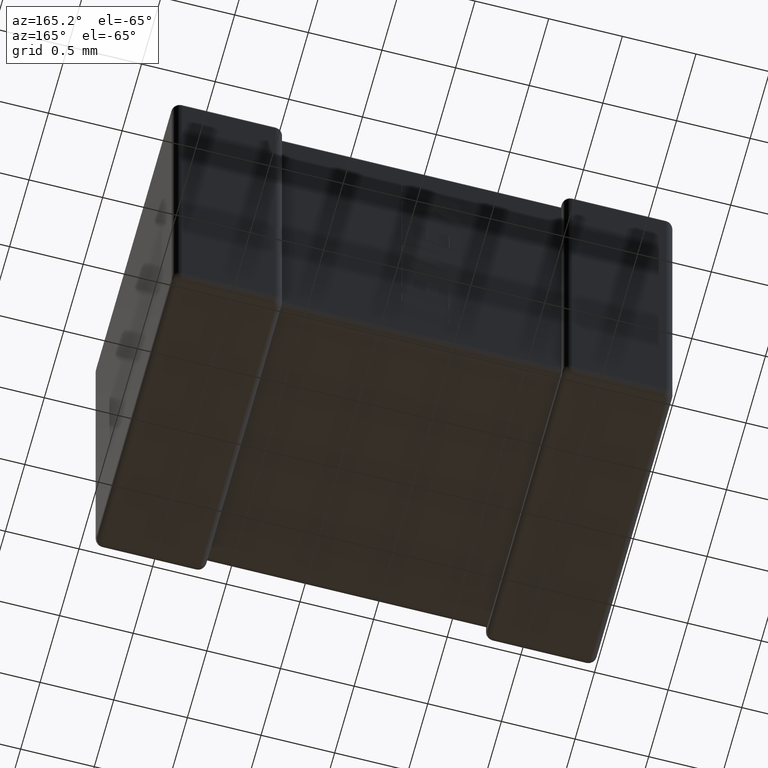
[diagram: clean part render]
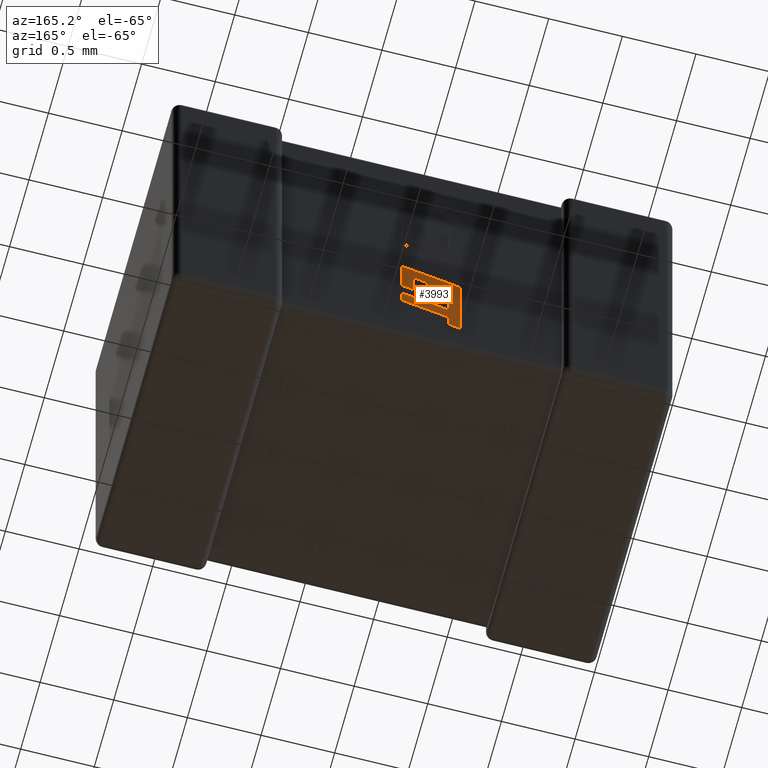
[diagram: same view with one face highlighted and labeled with its STEP entity id]
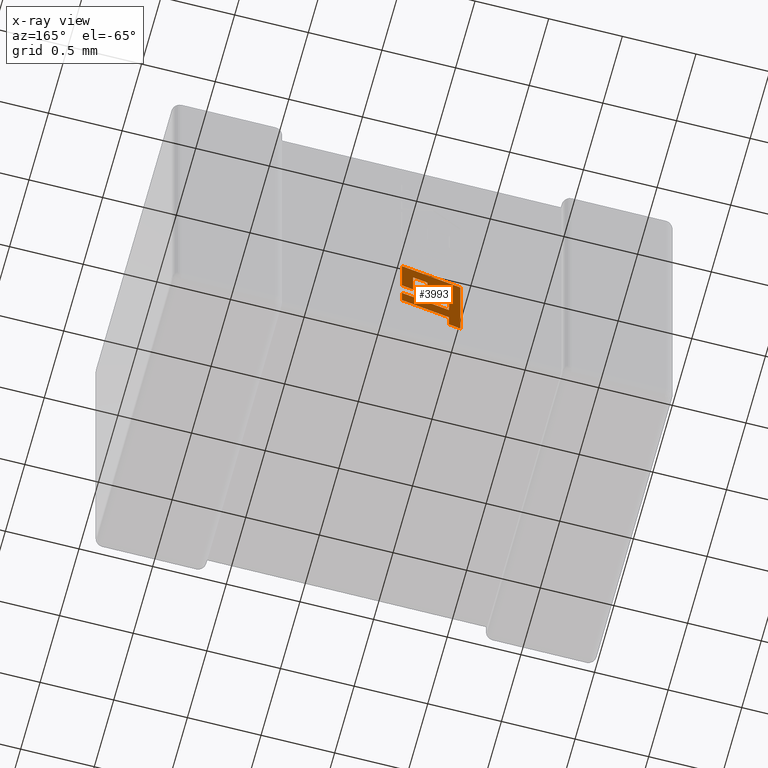
[diagram: x-ray of the same camera — body ghosted, the highlighted face saturated]
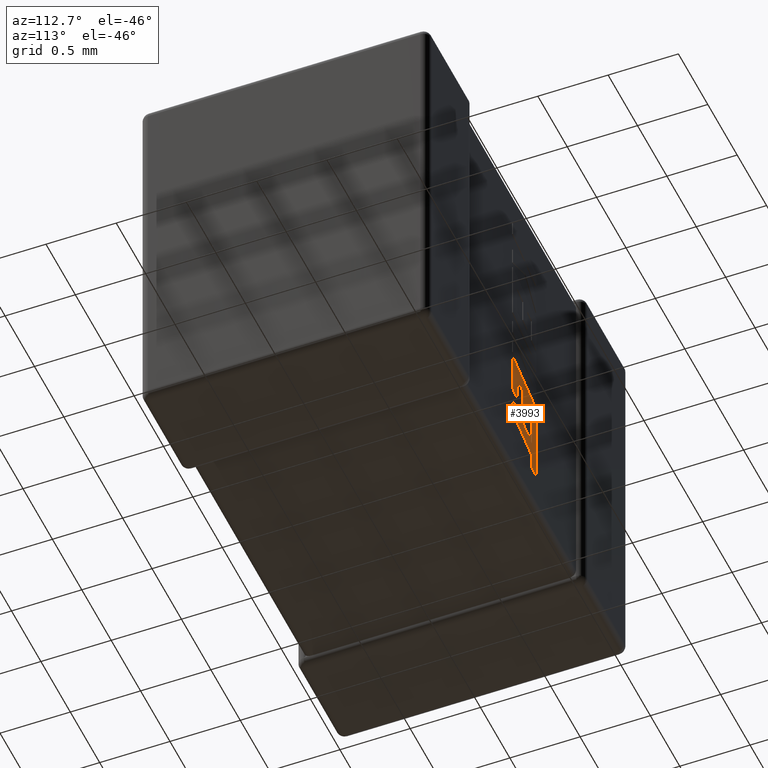
[diagram: same view with one face highlighted and labeled with its STEP entity id]
A machine part, auxiliary view. The second image highlights one B-rep face of the part: STEP entity #3993.
The next image is the same camera in x-ray: the body ghosted, the highlighted face saturated — about 0% of this face is hidden behind the body in this view.
A second angle (auxiliary view) of the same face is appended — the face is thin or edge-on in the first view.
In plain terms, the highlighted planar face has unit normal (0, 1, 0).
Its self-contained STEP definition (entity closure, byte-faithful):
#34 = CARTESIAN_POINT ( 'NONE',  ( 1.588465923456928497, 1.998839999999999950, -1.966827799437227853 ) ) ;
#143 = DIRECTION ( 'NONE',  ( -0.9610992334305258344, 0.000000000000000000, -0.2762033010288898471 ) ) ;
#148 = CARTESIAN_POINT ( 'NONE',  ( 1.515718616155726339, 1.998839999999999950, -2.342256360764721101 ) ) ;
#171 = DIRECTION ( 'NONE',  ( 7.938847109757213207E-05, 0.000000000000000000, -0.9999999968487351953 ) ) ;
#217 = EDGE_CURVE ( 'NONE', #3555, #1108, #258, .T. ) ;
#223 = DIRECTION ( 'NONE',  ( 0.002813301676014987301, 0.000000000000000000, -0.9999960426590095430 ) ) ;
#252 = CARTESIAN_POINT ( 'NONE',  ( 1.515709988556392718, 1.998839999999999950, -2.120536977100616838 ) ) ;
#258 = LINE ( 'NONE', #980, #3658 ) ;
#286 = VERTEX_POINT ( 'NONE', #356 ) ;
#317 = VECTOR ( 'NONE', #1958, 1000.000000000000000 ) ;
#341 = LINE ( 'NONE', #2171, #3748 ) ;
#347 = CARTESIAN_POINT ( 'NONE',  ( 1.588465923456928497, 1.998839999999999950, -1.796487452407086405 ) ) ;
#356 = CARTESIAN_POINT ( 'NONE',  ( 1.760469387423751142, 1.998839999999999950, -1.747392916304139288 ) ) ;
#411 = VECTOR ( 'NONE', #2578, 1000.000000000000227 ) ;
#435 = CARTESIAN_POINT ( 'NONE',  ( 1.760469387423751142, 1.998839999999999950, -1.747392916304139288 ) ) ;
#472 = LINE ( 'NONE', #4144, #1908 ) ;
#482 = DIRECTION ( 'NONE',  ( 0.000000000000000000, 0.000000000000000000, 1.000000000000000000 ) ) ;
#517 = EDGE_CURVE ( 'NONE', #2469, #1647, #3500, .T. ) ;
#522 = VERTEX_POINT ( 'NONE', #2718 ) ;
#524 = CARTESIAN_POINT ( 'NONE',  ( 1.661831346059415848, 1.998839999999999950, -1.945868663934890108 ) ) ;
#556 = VERTEX_POINT ( 'NONE', #34 ) ;
#575 = VECTOR ( 'NONE', #2186, 1000.000000000000227 ) ;
#601 = LINE ( 'NONE', #1332, #3647 ) ;
#644 = VECTOR ( 'NONE', #2866, 1000.000000000000114 ) ;
#705 = ORIENTED_EDGE ( 'NONE', *, *, #2981, .T. ) ;
#737 = EDGE_CURVE ( 'NONE', #803, #3859, #601, .T. ) ;
#740 = CARTESIAN_POINT ( 'NONE',  ( 1.514637048819877929, 1.998839999999999950, -1.817970385261019617 ) ) ;
#768 = EDGE_CURVE ( 'NONE', #1924, #286, #4158, .T. ) ;
#803 = VERTEX_POINT ( 'NONE', #3205 ) ;
#806 = LINE ( 'NONE', #524, #3137 ) ;
#913 = CARTESIAN_POINT ( 'NONE',  ( 1.760469387423751142, 1.998839999999999950, -1.934238914441522628 ) ) ;
#938 = CARTESIAN_POINT ( 'NONE',  ( 1.515709988556392718, 1.998839999999999950, -2.120536977100616838 ) ) ;
#951 = EDGE_CURVE ( 'NONE', #1108, #1016, #3733, .T. ) ;
#959 = ORIENTED_EDGE ( 'NONE', *, *, #3002, .T. ) ;
#980 = CARTESIAN_POINT ( 'NONE',  ( 1.836000000000006738, 1.998839999999999950, -2.141520250729723074 ) ) ;
#992 = EDGE_CURVE ( 'NONE', #1842, #2079, #4168, .T. ) ;
#1016 = VERTEX_POINT ( 'NONE', #148 ) ;
#1108 = VERTEX_POINT ( 'NONE', #4029 ) ;
#1114 = CARTESIAN_POINT ( 'NONE',  ( 1.836000000000006738, 1.998839999999999950, -2.028450023350382825 ) ) ;
#1132 = CARTESIAN_POINT ( 'NONE',  ( -0.8277549025643626823, 1.998839999999999062, 0.006109351898183301016 ) ) ;
#1184 = DIRECTION ( 'NONE',  ( -0.9615323037684311291, 0.000000000000000000, -0.2746918797667187162 ) ) ;
#1244 = CARTESIAN_POINT ( 'NONE',  ( 1.836000000000006738, 1.998839999999999950, -2.141520250729723074 ) ) ;
#1278 = LINE ( 'NONE', #2403, #2824 ) ;
#1283 = DIRECTION ( 'NONE',  ( 0.000000000000000000, 0.000000000000000000, 1.000000000000000000 ) ) ;
#1289 = EDGE_CURVE ( 'NONE', #1016, #803, #472, .T. ) ;
#1316 = VECTOR ( 'NONE', #223, 1000.000000000000114 ) ;
#1332 = CARTESIAN_POINT ( 'NONE',  ( 1.439070229052686667, 1.998839999999999950, -2.364283781867570156 ) ) ;
#1414 = CARTESIAN_POINT ( 'NONE',  ( 1.836000000000006738, 1.998839999999999950, -2.028450023350382825 ) ) ;
#1455 = VECTOR ( 'NONE', #1675, 1000.000000000000114 ) ;
#1553 = AXIS2_PLACEMENT_3D ( 'NONE', #1132, #2373, #2344 ) ;
#1636 = CARTESIAN_POINT ( 'NONE',  ( 1.661831346059415848, 1.998839999999999950, -1.945868663934890108 ) ) ;
#1647 = VERTEX_POINT ( 'NONE', #1114 ) ;
#1675 = DIRECTION ( 'NONE',  ( 0.9610664548998939516, 0.000000000000000000, 0.2763173343569854667 ) ) ;
#1691 = EDGE_LOOP ( 'NONE', ( #4453, #3898, #2270, #2534, #4079, #1915, #4109, #4130, #3038, #3108, #2569, #1703, #705, #3089, #3536, #959, #2340 ) ) ;
#1702 = DIRECTION ( 'NONE',  ( -0.9610876102172832836, 0.000000000000000000, -0.2762437428917279836 ) ) ;
#1703 = ORIENTED_EDGE ( 'NONE', *, *, #768, .T. ) ;
#1746 = LINE ( 'NONE', #3218, #644 ) ;
#1836 = VECTOR ( 'NONE', #482, 1000.000000000000000 ) ;
#1842 = VERTEX_POINT ( 'NONE', #3375 ) ;
#1908 = VECTOR ( 'NONE', #143, 1000.000000000000227 ) ;
#1915 = ORIENTED_EDGE ( 'NONE', *, *, #951, .T. ) ;
#1924 = VERTEX_POINT ( 'NONE', #4220 ) ;
#1958 = DIRECTION ( 'NONE',  ( 0.000000000000000000, 0.000000000000000000, -1.000000000000000000 ) ) ;
#1969 = VECTOR ( 'NONE', #4529, 1000.000000000000000 ) ;
#2041 = VECTOR ( 'NONE', #171, 1000.000000000000227 ) ;
#2079 = VERTEX_POINT ( 'NONE', #1636 ) ;
#2171 = CARTESIAN_POINT ( 'NONE',  ( 1.439070229052686667, 1.998839999999999950, -1.727085510544205116 ) ) ;
#2186 = DIRECTION ( 'NONE',  ( 0.004650693823668811989, 0.000000000000000000, -0.9999891854650021505 ) ) ;
#2270 = ORIENTED_EDGE ( 'NONE', *, *, #517, .T. ) ;
#2340 = ORIENTED_EDGE ( 'NONE', *, *, #2565, .T. ) ;
#2344 = DIRECTION ( 'NONE',  ( 0.000000000000000000, 0.000000000000000000, 1.000000000000000000 ) ) ;
#2351 = VERTEX_POINT ( 'NONE', #3022 ) ;
#2373 = DIRECTION ( 'NONE',  ( 0.000000000000000000, 1.000000000000000000, 0.000000000000000000 ) ) ;
#2403 = CARTESIAN_POINT ( 'NONE',  ( 1.836000000000006738, 1.998839999999999950, -1.612914584263951401 ) ) ;
#2469 = VERTEX_POINT ( 'NONE', #938 ) ;
#2534 = ORIENTED_EDGE ( 'NONE', *, *, #4415, .T. ) ;
#2565 = EDGE_CURVE ( 'NONE', #4600, #2597, #3207, .T. ) ;
#2569 = ORIENTED_EDGE ( 'NONE', *, *, #4097, .T. ) ;
#2578 = DIRECTION ( 'NONE',  ( -0.9615825319869173438, 0.000000000000000000, -0.2745159998572559434 ) ) ;
#2597 = VERTEX_POINT ( 'NONE', #740 ) ;
#2692 = LINE ( 'NONE', #4139, #1316 ) ;
#2697 = VECTOR ( 'NONE', #2860, 1000.000000000000000 ) ;
#2718 = CARTESIAN_POINT ( 'NONE',  ( 1.836000000000006738, 1.998839999999999950, -1.612914584263951401 ) ) ;
#2816 = EDGE_CURVE ( 'NONE', #522, #3604, #1278, .T. ) ;
#2822 = DIRECTION ( 'NONE',  ( 0.9610348236706638403, 0.000000000000000000, 0.2764273280489756845 ) ) ;
#2824 = VECTOR ( 'NONE', #3156, 1000.000000000000000 ) ;
#2860 = DIRECTION ( 'NONE',  ( 0.000000000000000000, 0.000000000000000000, -1.000000000000000000 ) ) ;
#2866 = DIRECTION ( 'NONE',  ( -0.9620200793798762140, 0.000000000000000000, -0.2729786930695083380 ) ) ;
#2876 = EDGE_CURVE ( 'NONE', #3859, #522, #341, .T. ) ;
#2906 = CARTESIAN_POINT ( 'NONE',  ( 1.515148777108214828, 1.998839999999999950, -1.999865653591700765 ) ) ;
#2916 = CARTESIAN_POINT ( 'NONE',  ( 1.588465923456928497, 1.998839999999999950, -1.796487452407086405 ) ) ;
#2940 = LINE ( 'NONE', #3035, #1836 ) ;
#2941 = FACE_OUTER_BOUND ( 'NONE', #1691, .T. ) ;
#2981 = EDGE_CURVE ( 'NONE', #286, #1842, #4631, .T. ) ;
#3002 = EDGE_CURVE ( 'NONE', #556, #4600, #2940, .T. ) ;
#3022 = CARTESIAN_POINT ( 'NONE',  ( 1.515148777108214828, 1.998839999999999950, -1.999865653591700765 ) ) ;
#3035 = CARTESIAN_POINT ( 'NONE',  ( 1.588465923456928497, 1.998839999999999950, -1.966827799437227853 ) ) ;
#3038 = ORIENTED_EDGE ( 'NONE', *, *, #2876, .T. ) ;
#3078 = CARTESIAN_POINT ( 'NONE',  ( 1.515709988557378152, 1.998839999999999950, -2.233580652540275047 ) ) ;
#3089 = ORIENTED_EDGE ( 'NONE', *, *, #992, .T. ) ;
#3108 = ORIENTED_EDGE ( 'NONE', *, *, #2816, .T. ) ;
#3137 = VECTOR ( 'NONE', #1184, 1000.000000000000227 ) ;
#3156 = DIRECTION ( 'NONE',  ( 0.000000000000000000, 0.000000000000000000, -1.000000000000000000 ) ) ;
#3205 = CARTESIAN_POINT ( 'NONE',  ( 1.439070229052686667, 1.998839999999999950, -2.364283781867570156 ) ) ;
#3207 = LINE ( 'NONE', #347, #4328 ) ;
#3218 = CARTESIAN_POINT ( 'NONE',  ( 1.836000000000006738, 1.998839999999999950, -1.912806671653933366 ) ) ;
#3375 = CARTESIAN_POINT ( 'NONE',  ( 1.661831346059415848, 1.998839999999999950, -1.775552455031555121 ) ) ;
#3500 = LINE ( 'NONE', #252, #1455 ) ;
#3536 = ORIENTED_EDGE ( 'NONE', *, *, #3954, .T. ) ;
#3555 = VERTEX_POINT ( 'NONE', #1244 ) ;
#3604 = VERTEX_POINT ( 'NONE', #4047 ) ;
#3647 = VECTOR ( 'NONE', #1283, 1000.000000000000000 ) ;
#3658 = VECTOR ( 'NONE', #1702, 1000.000000000000227 ) ;
#3699 = EDGE_CURVE ( 'NONE', #2597, #2351, #2692, .T. ) ;
#3700 = LINE ( 'NONE', #2906, #575 ) ;
#3733 = LINE ( 'NONE', #3078, #2041 ) ;
#3748 = VECTOR ( 'NONE', #2822, 1000.000000000000000 ) ;
#3859 = VERTEX_POINT ( 'NONE', #4305 ) ;
#3898 = ORIENTED_EDGE ( 'NONE', *, *, #4509, .T. ) ;
#3954 = EDGE_CURVE ( 'NONE', #2079, #556, #806, .T. ) ;
#3993 = ADVANCED_FACE ( 'NONE', ( #2941 ), #4380, .T. ) ;
#4029 = CARTESIAN_POINT ( 'NONE',  ( 1.515709988557378152, 1.998839999999999950, -2.233580652540275047 ) ) ;
#4047 = CARTESIAN_POINT ( 'NONE',  ( 1.836000000000006738, 1.998839999999999950, -1.912806671653933366 ) ) ;
#4079 = ORIENTED_EDGE ( 'NONE', *, *, #217, .T. ) ;
#4085 = CARTESIAN_POINT ( 'NONE',  ( 1.661831346059415848, 1.998839999999999950, -1.775552455031555121 ) ) ;
#4097 = EDGE_CURVE ( 'NONE', #3604, #1924, #1746, .T. ) ;
#4109 = ORIENTED_EDGE ( 'NONE', *, *, #1289, .T. ) ;
#4130 = ORIENTED_EDGE ( 'NONE', *, *, #737, .T. ) ;
#4139 = CARTESIAN_POINT ( 'NONE',  ( 1.514637048819877929, 1.998839999999999950, -1.817970385261019617 ) ) ;
#4144 = CARTESIAN_POINT ( 'NONE',  ( 1.515718616155726339, 1.998839999999999950, -2.342256360764721101 ) ) ;
#4158 = LINE ( 'NONE', #913, #1969 ) ;
#4168 = LINE ( 'NONE', #4085, #317 ) ;
#4220 = CARTESIAN_POINT ( 'NONE',  ( 1.760469387423751142, 1.998839999999999950, -1.934238914441522628 ) ) ;
#4305 = CARTESIAN_POINT ( 'NONE',  ( 1.439070229052686667, 1.998839999999999950, -1.727085510544205116 ) ) ;
#4310 = DIRECTION ( 'NONE',  ( -0.9601763114346046901, 0.000000000000000000, -0.2793947940814874853 ) ) ;
#4328 = VECTOR ( 'NONE', #4310, 1000.000000000000114 ) ;
#4380 = PLANE ( 'NONE',  #1553 ) ;
#4415 = EDGE_CURVE ( 'NONE', #1647, #3555, #4645, .T. ) ;
#4453 = ORIENTED_EDGE ( 'NONE', *, *, #3699, .T. ) ;
#4509 = EDGE_CURVE ( 'NONE', #2351, #2469, #3700, .T. ) ;
#4529 = DIRECTION ( 'NONE',  ( 0.000000000000000000, 0.000000000000000000, 1.000000000000000000 ) ) ;
#4600 = VERTEX_POINT ( 'NONE', #2916 ) ;
#4631 = LINE ( 'NONE', #435, #411 ) ;
#4645 = LINE ( 'NONE', #1414, #2697 ) ;